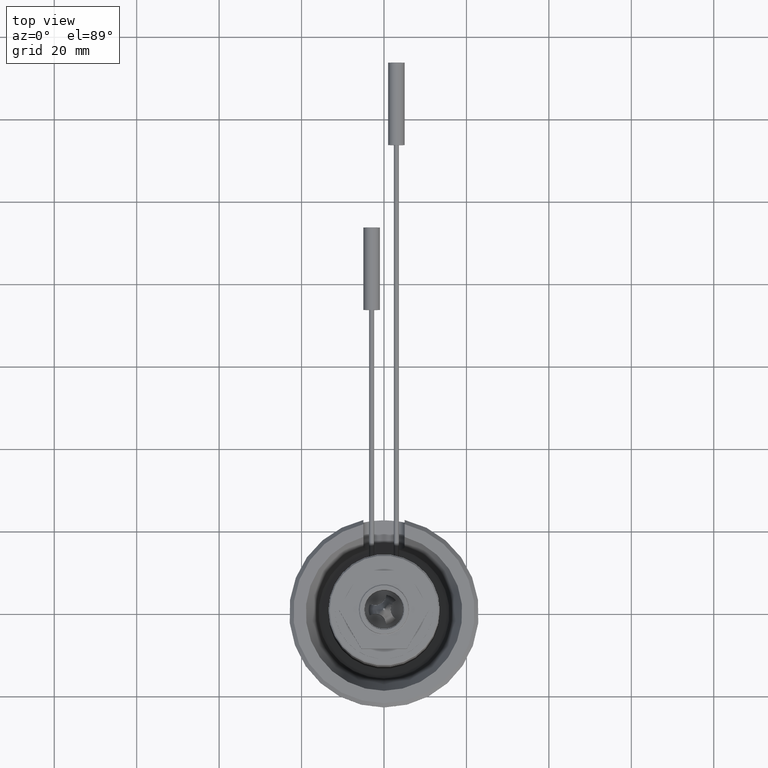
[diagram: clean part render]
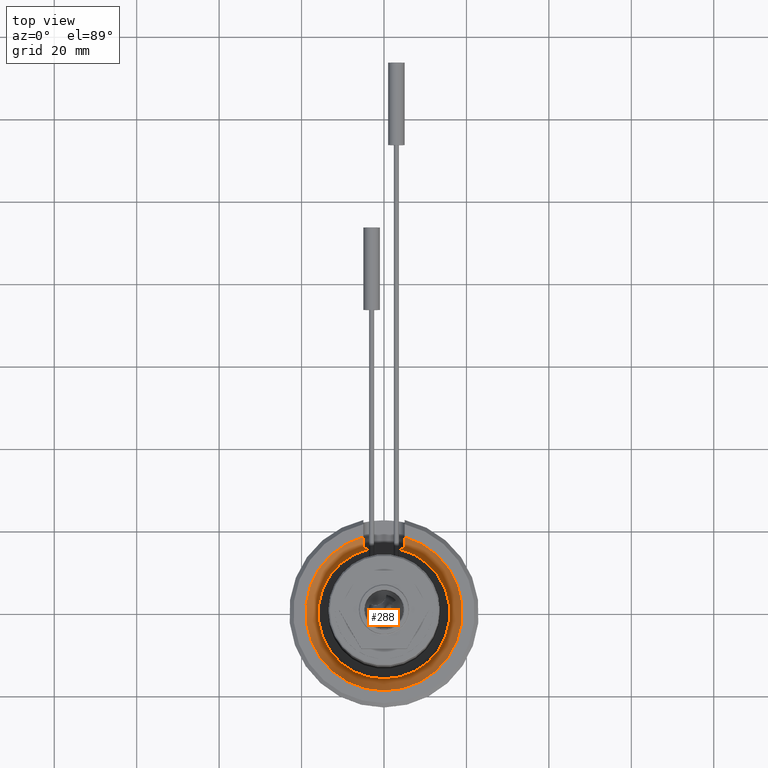
[diagram: same view with one face highlighted and labeled with its STEP entity id]
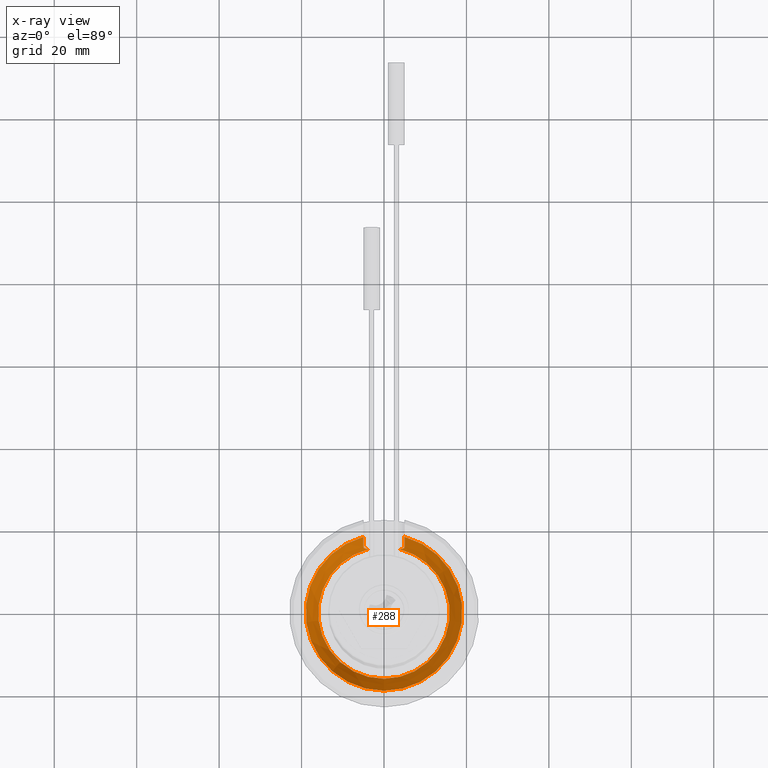
[diagram: x-ray of the same camera — body ghosted, the highlighted face saturated]
A machine part, top view. The second image highlights one B-rep face of the part: STEP entity #288.
The next image is the same camera in x-ray: the body ghosted, the highlighted face saturated — about 0% of this face is hidden behind the body in this view.
In plain terms, the highlighted conical surface has half-angle 18.76 deg.
Its self-contained STEP definition (entity closure, byte-faithful):
#120=CONICAL_SURFACE('',#1165,15.9573329734641,18.7599999999998);
#139=B_SPLINE_CURVE_WITH_KNOTS('',3,(#1836,#1837,#1838,#1839,#1840,#1841,
#1842,#1843,#1844,#1845),.UNSPECIFIED.,.F.,.F.,(4,3,3,4),(0.,0.32770799258652,
0.655290656848575,1.),.UNSPECIFIED.);
#140=B_SPLINE_CURVE_WITH_KNOTS('',3,(#1847,#1848,#1849,#1850,#1851,#1852,
#1853),.UNSPECIFIED.,.F.,.F.,(4,3,4),(0.,0.718508524364149,1.),
 .UNSPECIFIED.);
#141=B_SPLINE_CURVE_WITH_KNOTS('',3,(#1857,#1858,#1859,#1860),
 .UNSPECIFIED.,.F.,.F.,(4,4),(0.,1.),.UNSPECIFIED.);
#142=B_SPLINE_CURVE_WITH_KNOTS('',3,(#1862,#1863,#1864,#1865,#1866,#1867,
#1868,#1869,#1870,#1871),.UNSPECIFIED.,.F.,.F.,(4,3,3,4),(0.,0.347353954695441,
0.696050717213932,1.),.UNSPECIFIED.);
#237=FACE_OUTER_BOUND('',#456,.T.);
#288=ADVANCED_FACE('',(#237),#120,.F.);
#456=EDGE_LOOP('',(#617,#618,#619,#620,#621,#622));
#617=ORIENTED_EDGE('',*,*,#961,.T.);
#618=ORIENTED_EDGE('',*,*,#963,.T.);
#619=ORIENTED_EDGE('',*,*,#964,.T.);
#620=ORIENTED_EDGE('',*,*,#965,.T.);
#621=ORIENTED_EDGE('',*,*,#966,.T.);
#622=ORIENTED_EDGE('',*,*,#967,.T.);
#855=VERTEX_POINT('',#1819);
#856=VERTEX_POINT('',#1821);
#857=VERTEX_POINT('',#1846);
#858=VERTEX_POINT('',#1854);
#859=VERTEX_POINT('',#1856);
#860=VERTEX_POINT('',#1861);
#961=EDGE_CURVE('',#856,#855,#1058,.T.);
#963=EDGE_CURVE('',#855,#857,#139,.T.);
#964=EDGE_CURVE('',#857,#858,#140,.T.);
#965=EDGE_CURVE('',#858,#859,#1059,.T.);
#966=EDGE_CURVE('',#859,#860,#141,.T.);
#967=EDGE_CURVE('',#860,#856,#142,.T.);
#1058=CIRCLE('',#1162,15.9573329734641);
#1059=CIRCLE('',#1164,18.9996646888082);
#1162=AXIS2_PLACEMENT_3D('',#1820,#1386,#1387);
#1164=AXIS2_PLACEMENT_3D('',#1855,#1390,#1391);
#1165=AXIS2_PLACEMENT_3D('',#1872,#1392,#1393);
#1386=DIRECTION('',(0.,0.,-1.));
#1387=DIRECTION('',(1.,0.,0.));
#1390=DIRECTION('',(0.,0.,1.));
#1391=DIRECTION('',(1.,0.,0.));
#1392=DIRECTION('',(0.,0.,1.));
#1393=DIRECTION('',(1.,0.,2.53667142699091E-16));
#1819=CARTESIAN_POINT('',(-3.72097542148827,15.5174359202378,16.0427162152864));
#1820=CARTESIAN_POINT('',(0.,0.,16.0427162152864));
#1821=CARTESIAN_POINT('',(3.72097542148828,15.5174359202378,16.0427162152864));
#1836=CARTESIAN_POINT('',(-3.72097542148827,15.5174359202378,16.0427162152864));
#1837=CARTESIAN_POINT('',(-3.98277157782718,15.5186992617101,16.2260669350134));
#1838=CARTESIAN_POINT('',(-4.21794760816638,15.5359287078045,16.4551172760731));
#1839=CARTESIAN_POINT('',(-4.40742427691912,15.572251740747,16.7099418023773));
#1840=CARTESIAN_POINT('',(-4.59687494830943,15.6085697899463,16.9647313651917));
#1841=CARTESIAN_POINT('',(-4.74573847444864,15.6651424485488,17.2519921280415));
#1842=CARTESIAN_POINT('',(-4.84450453067003,15.739471852835,17.5466931370387));
#1843=CARTESIAN_POINT('',(-4.94842189203484,15.8176780287293,17.8567647589923));
#1844=CARTESIAN_POINT('',(-4.999999999995,15.9175575952801,18.1832099799597));
#1845=CARTESIAN_POINT('',(-4.999999999995,16.0302674789854,18.5));
#1846=CARTESIAN_POINT('',(-4.999999999995,16.0302674789854,18.5));
#1847=CARTESIAN_POINT('',(-4.999999999995,16.0302674789854,18.5));
#1848=CARTESIAN_POINT('',(-4.99999999999501,16.5837981322374,20.0557906811021));
#1849=CARTESIAN_POINT('',(-4.99999999999501,17.1350924758848,21.6123779800152));
#1850=CARTESIAN_POINT('',(-4.99999999999501,17.6847176590897,23.1695526604799));
#1851=CARTESIAN_POINT('',(-4.99999999999501,17.9000466703584,23.7796136521579));
#1852=CARTESIAN_POINT('',(-4.99999999999501,18.1151171650184,24.3897659402078));
#1853=CARTESIAN_POINT('',(-4.99999999999501,18.3299552178175,25.));
#1854=CARTESIAN_POINT('',(-4.99999999999501,18.3299552178175,25.));
#1855=CARTESIAN_POINT('',(0.,0.,25.));
#1856=CARTESIAN_POINT('',(4.999999999995,18.3299552178175,25.));
#1857=CARTESIAN_POINT('',(4.999999999995,18.3299552178175,25.));
#1858=CARTESIAN_POINT('',(4.999999999995,17.56674202209,22.8321406247751));
#1859=CARTESIAN_POINT('',(4.99999999999501,16.8006554283944,20.6653044605249));
#1860=CARTESIAN_POINT('',(4.99999999999501,16.0302674789854,18.5));
#1861=CARTESIAN_POINT('',(4.99999999999501,16.0302674789854,18.5));
#1862=CARTESIAN_POINT('',(4.99999999999501,16.0302674789854,18.5));
#1863=CARTESIAN_POINT('',(4.99999999999501,15.9167119018971,18.1808330169557));
#1864=CARTESIAN_POINT('',(4.9476208680936,15.8161769555109,17.8518229738639));
#1865=CARTESIAN_POINT('',(4.8421232761929,15.7376900591994,17.5396171165134));
#1866=CARTESIAN_POINT('',(4.73637681698707,15.6590180134261,17.2266747700262));
#1867=CARTESIAN_POINT('',(4.57373545215272,15.6004690671847,16.9220537074497));
#1868=CARTESIAN_POINT('',(4.36614244084571,15.5647502097146,16.6557196662099));
#1869=CARTESIAN_POINT('',(4.18452917421592,15.5335014776663,16.4227166622082));
#1870=CARTESIAN_POINT('',(3.96430150647066,15.518610131268,16.2131312948421));
#1871=CARTESIAN_POINT('',(3.72097542148828,15.5174359202378,16.0427162152864));
#1872=CARTESIAN_POINT('',(0.,0.,16.0427162152864));